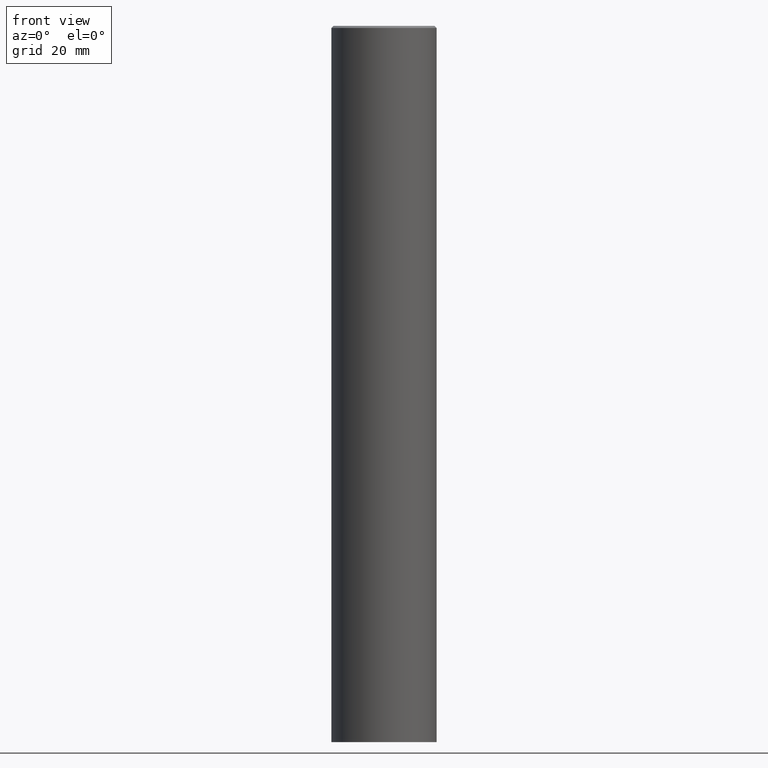
[diagram: clean part render]
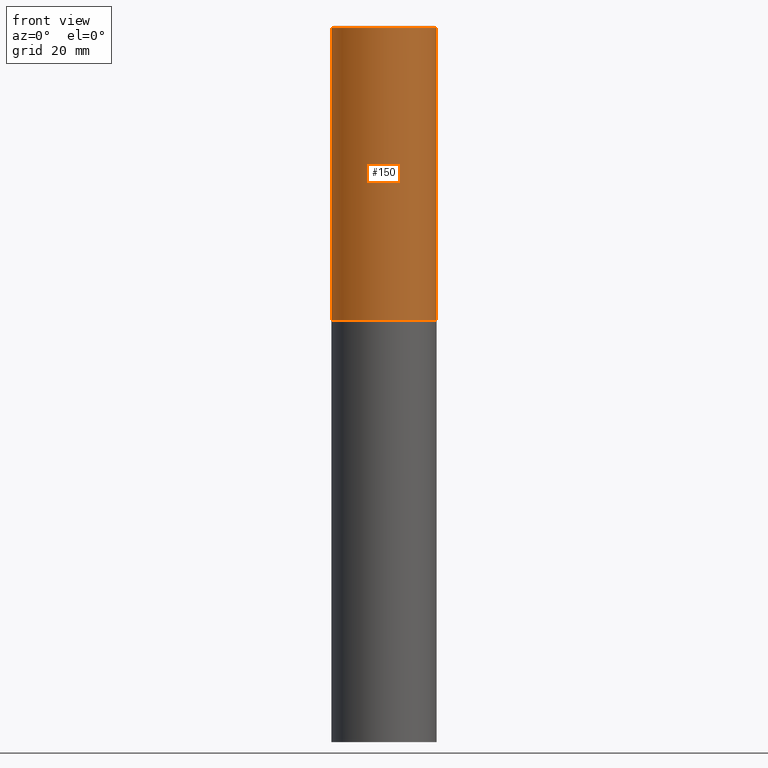
[diagram: same view with one face highlighted and labeled with its STEP entity id]
A machine part, front view. The second image highlights one B-rep face of the part: STEP entity #150.
In plain terms, the highlighted cylindrical surface (partial cylindrical patch) has radius 12.5006 mm, axis along (-0, 0, 1).
Its self-contained STEP definition (entity closure, byte-faithful):
#17 = VERTEX_POINT ( 'NONE', #343 ) ;
#32 = EDGE_CURVE ( 'NONE', #17, #118, #258, .T. ) ;
#36 = VECTOR ( 'NONE', #95, 39.37007874015748143 ) ;
#43 = CARTESIAN_POINT ( 'NONE',  ( 0.4921499999999998098, -3.436665081823294593E-15, 2.399810400207968762E-29 ) ) ;
#45 = CARTESIAN_POINT ( 'NONE',  ( 4.890937612370296805E-31, -6.982962677686323656E-17, -0.02000000000000009409 ) ) ;
#55 = EDGE_LOOP ( 'NONE', ( #211, #301, #324, #132 ) ) ;
#60 = AXIS2_PLACEMENT_3D ( 'NONE', #97, #291, #182 ) ;
#62 = DIRECTION ( 'NONE',  ( -2.445468806185136877E-29, 3.491481338843145188E-15, 1.000000000000000000 ) ) ;
#82 = EDGE_CURVE ( 'NONE', #17, #160, #127, .T. ) ;
#86 = EDGE_CURVE ( 'NONE', #160, #231, #327, .T. ) ;
#95 = DIRECTION ( 'NONE',  ( -2.445468806185136877E-29, 3.491481338843145188E-15, 1.000000000000000000 ) ) ;
#97 = CARTESIAN_POINT ( 'NONE',  ( 6.737022014159432629E-29, -9.618681940378981383E-15, -2.754900000000000126 ) ) ;
#111 = CARTESIAN_POINT ( 'NONE',  ( 0.4921499999999999764, -1.305534702220227716E-14, -2.754900000000000126 ) ) ;
#118 = VERTEX_POINT ( 'NONE', #111 ) ;
#127 = LINE ( 'NONE', #267, #36 ) ;
#131 = CARTESIAN_POINT ( 'NONE',  ( 0.000000000000000000, 0.000000000000000000, 0.000000000000000000 ) ) ;
#132 = ORIENTED_EDGE ( 'NONE', *, *, #86, .F. ) ;
#150 = ADVANCED_FACE ( 'NONE', ( #300 ), #157, .T. ) ;
#157 = CYLINDRICAL_SURFACE ( 'NONE', #170, 0.4921499999999998098 ) ;
#160 = VERTEX_POINT ( 'NONE', #310 ) ;
#166 = CARTESIAN_POINT ( 'NONE',  ( 0.4921499999999996988, -3.446223716380120377E-15, -0.02000000000000009409 ) ) ;
#170 = AXIS2_PLACEMENT_3D ( 'NONE', #131, #189, #280 ) ;
#182 = DIRECTION ( 'NONE',  ( 1.000000000000000000, -6.982962677686265922E-15, 0.000000000000000000 ) ) ;
#189 = DIRECTION ( 'NONE',  ( -2.445468806185136597E-29, 3.491481338843145583E-15, 1.000000000000000000 ) ) ;
#211 = ORIENTED_EDGE ( 'NONE', *, *, #82, .F. ) ;
#225 = EDGE_CURVE ( 'NONE', #118, #231, #268, .T. ) ;
#231 = VERTEX_POINT ( 'NONE', #166 ) ;
#244 = AXIS2_PLACEMENT_3D ( 'NONE', #45, #321, #269 ) ;
#253 = VECTOR ( 'NONE', #62, 39.37007874015748143 ) ;
#258 = CIRCLE ( 'NONE', #60, 0.4921499999999999764 ) ;
#267 = CARTESIAN_POINT ( 'NONE',  ( -0.4921499999999998098, 3.496936074043331714E-15, -2.420853904668950949E-29 ) ) ;
#268 = LINE ( 'NONE', #43, #253 ) ;
#269 = DIRECTION ( 'NONE',  ( 1.000000000000000000, -6.982962677686265922E-15, 0.000000000000000000 ) ) ;
#280 = DIRECTION ( 'NONE',  ( 1.000000000000000000, -6.982962677686265922E-15, 4.876176775795935793E-29 ) ) ;
#291 = DIRECTION ( 'NONE',  ( -2.445468806185136597E-29, 3.491481338843145583E-15, 1.000000000000000000 ) ) ;
#300 = FACE_OUTER_BOUND ( 'NONE', #55, .T. ) ;
#301 = ORIENTED_EDGE ( 'NONE', *, *, #32, .T. ) ;
#310 = CARTESIAN_POINT ( 'NONE',  ( -0.4921499999999996988, 3.366835455046430506E-15, -0.02000000000000009409 ) ) ;
#321 = DIRECTION ( 'NONE',  ( -2.445468806185136597E-29, 3.491481338843145583E-15, 1.000000000000000000 ) ) ;
#324 = ORIENTED_EDGE ( 'NONE', *, *, #225, .T. ) ;
#327 = CIRCLE ( 'NONE', #244, 0.4921499999999996988 ) ;
#343 = CARTESIAN_POINT ( 'NONE',  ( -0.4921499999999999764, -1.347319709534588852E-15, -2.754900000000000126 ) ) ;